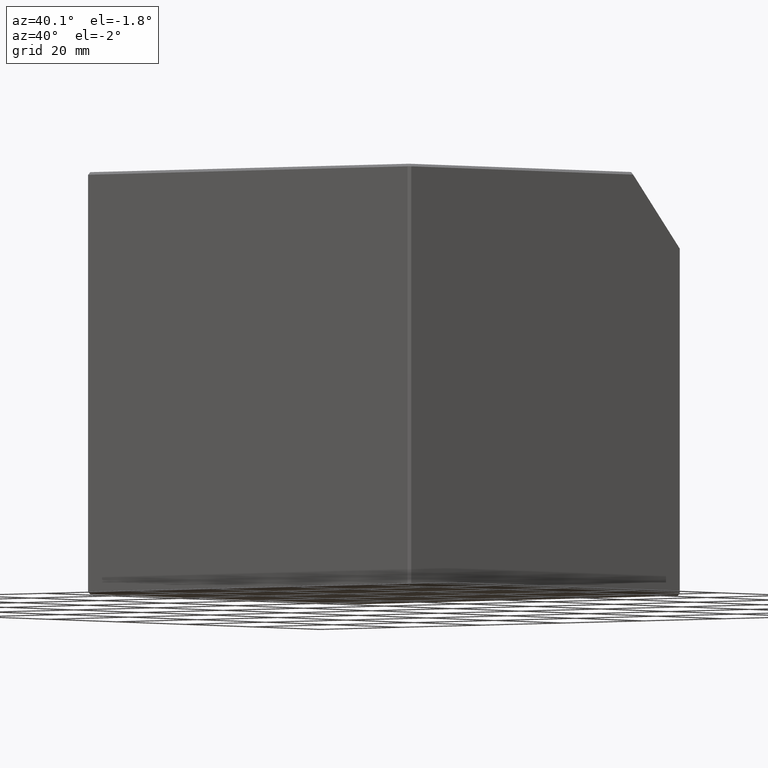
[diagram: clean part render]
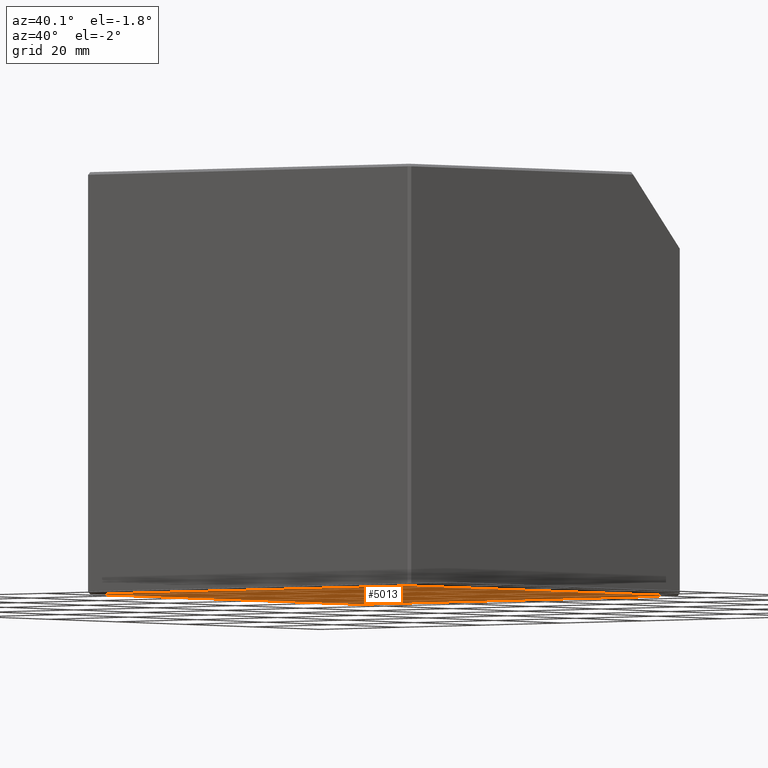
[diagram: same view with one face highlighted and labeled with its STEP entity id]
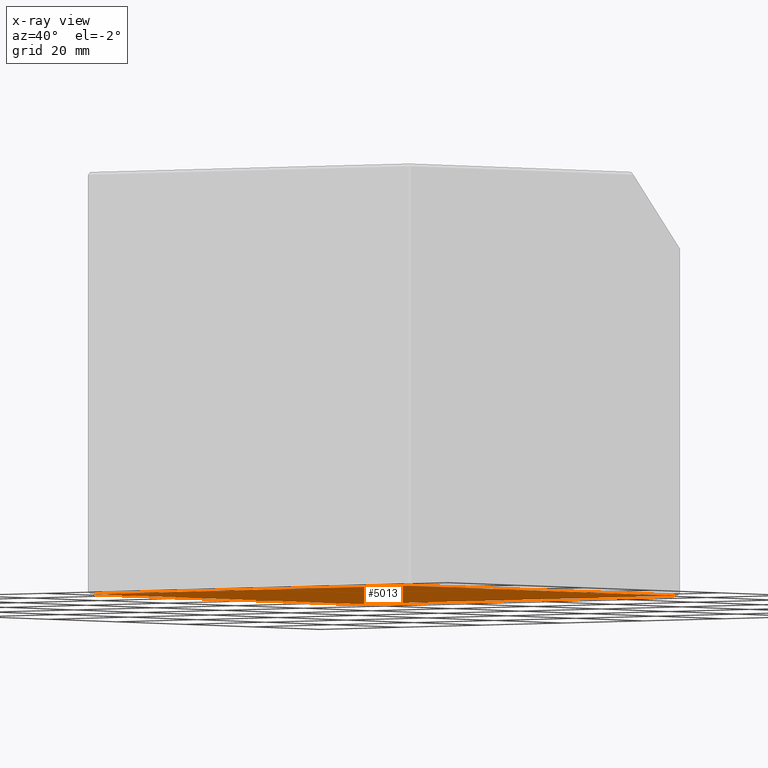
[diagram: x-ray of the same camera — body ghosted, the highlighted face saturated]
A machine part, auxiliary view. The second image highlights one B-rep face of the part: STEP entity #5013.
The next image is the same camera in x-ray: the body ghosted, the highlighted face saturated — about 0% of this face is hidden behind the body in this view.
In plain terms, the highlighted planar face has unit normal (-0, 0, 1).
Its self-contained STEP definition (entity closure, byte-faithful):
#79 = CARTESIAN_POINT ( 'NONE',  ( 0.0000000000000000000, 0.0000000000000000000, -40.00000000000000000 ) ) ;
#311 = VECTOR ( 'NONE', #6381, 1000.000000000000000 ) ;
#743 = EDGE_CURVE ( 'NONE', #5056, #9100, #3252, .T. ) ;
#1788 = CARTESIAN_POINT ( 'NONE',  ( -0.0000000000000000000, -39.50000000000005000, -40.00000000000000000 ) ) ;
#1931 = EDGE_LOOP ( 'NONE', ( #11167, #8497, #2826, #2054 ) ) ;
#2054 = ORIENTED_EDGE ( 'NONE', *, *, #4070, .T. ) ;
#2147 = EDGE_CURVE ( 'NONE', #9100, #4227, #6865, .T. ) ;
#2621 = VECTOR ( 'NONE', #8468, 1000.000000000000000 ) ;
#2826 = ORIENTED_EDGE ( 'NONE', *, *, #2147, .T. ) ;
#3252 = LINE ( 'NONE', #1788, #311 ) ;
#3526 = CARTESIAN_POINT ( 'NONE',  ( -39.50000000000002800, -3.426078865054196000E-015, -40.00000000000000000 ) ) ;
#4070 = EDGE_CURVE ( 'NONE', #4227, #14068, #4904, .T. ) ;
#4200 = CARTESIAN_POINT ( 'NONE',  ( 39.50000000000002800, 6.852157730108392000E-015, -40.00000000000000000 ) ) ;
#4227 = VERTEX_POINT ( 'NONE', #12038 ) ;
#4904 = LINE ( 'NONE', #8375, #2621 ) ;
#5013 = ADVANCED_FACE ( 'NONE', ( #5414 ), #6699, .F. ) ;
#5056 = VERTEX_POINT ( 'NONE', #8997 ) ;
#5414 = FACE_OUTER_BOUND ( 'NONE', #1931, .T. ) ;
#5455 = VECTOR ( 'NONE', #11955, 1000.000000000000000 ) ;
#5689 = DIRECTION ( 'NONE',  ( -8.673617379884034200E-017, 1.000000000000000000, 0.0000000000000000000 ) ) ;
#6381 = DIRECTION ( 'NONE',  ( -1.000000000000000000, 0.0000000000000000000, 0.0000000000000000000 ) ) ;
#6656 = AXIS2_PLACEMENT_3D ( 'NONE', #79, #7834, #11279 ) ;
#6699 = PLANE ( 'NONE',  #6656 ) ;
#6865 = LINE ( 'NONE', #3526, #9669 ) ;
#7834 = DIRECTION ( 'NONE',  ( -0.0000000000000000000, 0.0000000000000000000, 1.000000000000000000 ) ) ;
#8375 = CARTESIAN_POINT ( 'NONE',  ( 3.426078865054194400E-015, 39.50000000000000700, -40.00000000000000000 ) ) ;
#8468 = DIRECTION ( 'NONE',  ( 1.000000000000000000, -8.673617379884035500E-017, 0.0000000000000000000 ) ) ;
#8497 = ORIENTED_EDGE ( 'NONE', *, *, #743, .T. ) ;
#8617 = EDGE_CURVE ( 'NONE', #14068, #5056, #14307, .T. ) ;
#8997 = CARTESIAN_POINT ( 'NONE',  ( 39.50000000000003600, -39.50000000000005000, -40.00000000000000000 ) ) ;
#9100 = VERTEX_POINT ( 'NONE', #13338 ) ;
#9669 = VECTOR ( 'NONE', #5689, 1000.000000000000000 ) ;
#11167 = ORIENTED_EDGE ( 'NONE', *, *, #8617, .T. ) ;
#11279 = DIRECTION ( 'NONE',  ( 1.000000000000000000, 0.0000000000000000000, 0.0000000000000000000 ) ) ;
#11955 = DIRECTION ( 'NONE',  ( 1.734723475976806800E-016, -1.000000000000000000, 0.0000000000000000000 ) ) ;
#11992 = CARTESIAN_POINT ( 'NONE',  ( 39.50000000000002100, 39.50000000000000700, -40.00000000000000000 ) ) ;
#12038 = CARTESIAN_POINT ( 'NONE',  ( -39.50000000000002800, 39.50000000000001400, -40.00000000000000000 ) ) ;
#13338 = CARTESIAN_POINT ( 'NONE',  ( -39.50000000000002100, -39.50000000000005000, -40.00000000000000000 ) ) ;
#14068 = VERTEX_POINT ( 'NONE', #11992 ) ;
#14307 = LINE ( 'NONE', #4200, #5455 ) ;